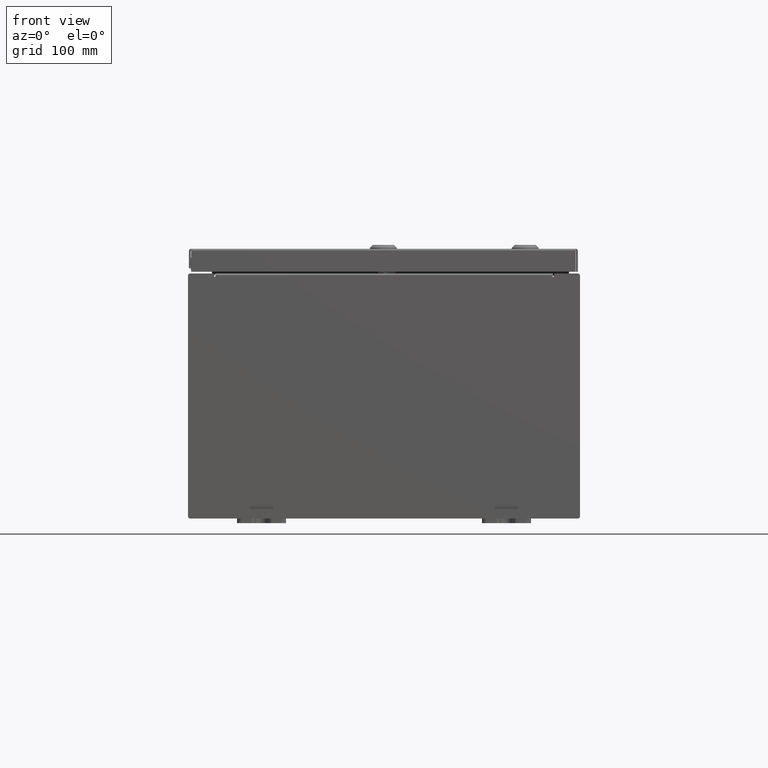
[diagram: clean part render]
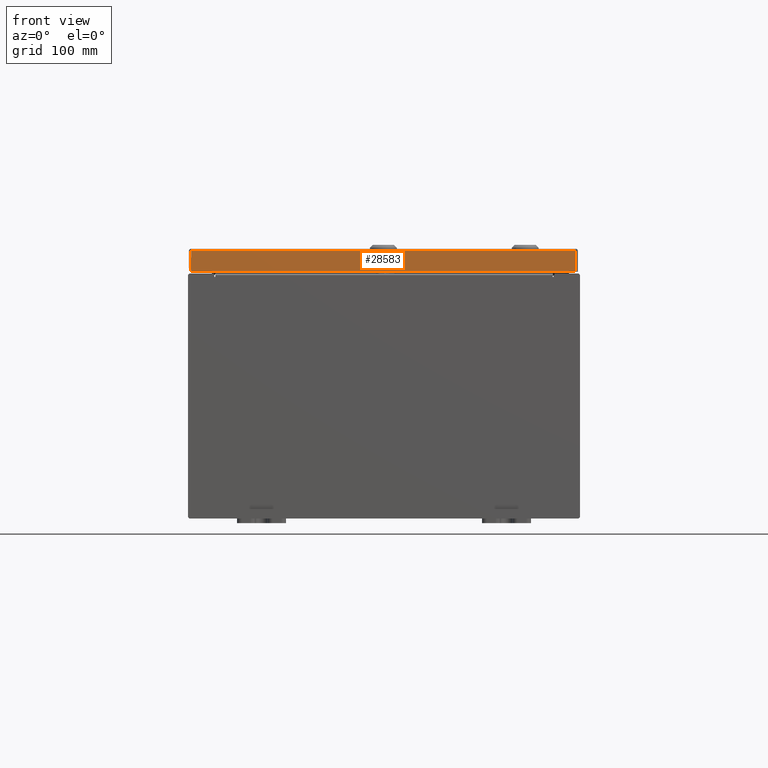
[diagram: same view with one face highlighted and labeled with its STEP entity id]
A machine part, front view. The second image highlights one B-rep face of the part: STEP entity #28583.
In plain terms, the highlighted planar face has unit normal (-0, 1, -0).
Its self-contained STEP definition (entity closure, byte-faithful):
#390 = DIRECTION ( 'NONE',  ( -1.000000000000000000, 4.379057701015054300E-047, 1.204594390907076900E-016 ) ) ;
#3893 = CARTESIAN_POINT ( 'NONE',  ( -7.848657864376269400, -9.937500000000001800, 2.542673665674263500E-014 ) ) ;
#4451 = DIRECTION ( 'NONE',  ( 1.000000000000000000, 3.050538836596730100E-031, -7.637704229682086500E-046 ) ) ;
#4873 = PLANE ( 'NONE',  #45772 ) ;
#9775 = CARTESIAN_POINT ( 'NONE',  ( 3.031472968868000600E-030, -9.937500000000001800, 2.542673665674263500E-014 ) ) ;
#9816 = EDGE_CURVE ( 'NONE', #54687, #25811, #41199, .T. ) ;
#12418 = DIRECTION ( 'NONE',  ( -0.0000000000000000000, -2.532419924601866100E-015, -1.000000000000000000 ) ) ;
#14356 = VECTOR ( 'NONE', #390, 39.37007874015748100 ) ;
#14650 = DIRECTION ( 'NONE',  ( 0.0000000000000000000, 2.532419924601866100E-015, 1.000000000000000000 ) ) ;
#18148 = VERTEX_POINT ( 'NONE', #63084 ) ;
#25811 = VERTEX_POINT ( 'NONE', #48892 ) ;
#27052 = EDGE_CURVE ( 'NONE', #54687, #18148, #46832, .T. ) ;
#28232 = EDGE_CURVE ( 'NONE', #18148, #51190, #55165, .T. ) ;
#28583 = ADVANCED_FACE ( 'NONE', ( #61960 ), #4873, .F. ) ;
#28840 = LINE ( 'NONE', #29548, #14356 ) ;
#29213 = EDGE_LOOP ( 'NONE', ( #54012, #35104, #48253, #52937 ) ) ;
#29239 = VECTOR ( 'NONE', #12418, 39.37007874015748100 ) ;
#29548 = CARTESIAN_POINT ( 'NONE',  ( 7.937500000000000000, -9.937500000000003600, -0.9376999999999997600 ) ) ;
#29753 = VECTOR ( 'NONE', #33072, 39.37007874015748100 ) ;
#33072 = DIRECTION ( 'NONE',  ( 0.0000000000000000000, -2.532419924601866100E-015, -1.000000000000000000 ) ) ;
#35104 = ORIENTED_EDGE ( 'NONE', *, *, #9816, .T. ) ;
#35352 = EDGE_CURVE ( 'NONE', #51190, #25811, #28840, .T. ) ;
#38503 = CARTESIAN_POINT ( 'NONE',  ( 7.937500000000000000, -9.937500000000001800, -0.08770000000000008300 ) ) ;
#41199 = LINE ( 'NONE', #3893, #29753 ) ;
#43836 = DIRECTION ( 'NONE',  ( -3.050538836596729700E-031, 1.000000000000000000, -2.532419924601866100E-015 ) ) ;
#45349 = CARTESIAN_POINT ( 'NONE',  ( -7.848657864376269400, -9.937500000000001800, -0.08770000000000008300 ) ) ;
#45772 = AXIS2_PLACEMENT_3D ( 'NONE', #9775, #43836, #14650 ) ;
#46832 = LINE ( 'NONE', #38503, #58277 ) ;
#48253 = ORIENTED_EDGE ( 'NONE', *, *, #35352, .F. ) ;
#48892 = CARTESIAN_POINT ( 'NONE',  ( -7.848657864376269400, -9.937500000000003600, -0.9376999999999977600 ) ) ;
#51190 = VERTEX_POINT ( 'NONE', #61623 ) ;
#52937 = ORIENTED_EDGE ( 'NONE', *, *, #28232, .F. ) ;
#54012 = ORIENTED_EDGE ( 'NONE', *, *, #27052, .F. ) ;
#54687 = VERTEX_POINT ( 'NONE', #45349 ) ;
#55165 = LINE ( 'NONE', #56092, #29239 ) ;
#56092 = CARTESIAN_POINT ( 'NONE',  ( 7.848657864376269400, -9.937500000000001800, -0.07469999999999980800 ) ) ;
#58277 = VECTOR ( 'NONE', #4451, 39.37007874015748100 ) ;
#61623 = CARTESIAN_POINT ( 'NONE',  ( 7.848657864376269400, -9.937500000000003600, -0.9376999999999997600 ) ) ;
#61960 = FACE_OUTER_BOUND ( 'NONE', #29213, .T. ) ;
#63084 = CARTESIAN_POINT ( 'NONE',  ( 7.848657864376269400, -9.937500000000001800, -0.08770000000000008300 ) ) ;